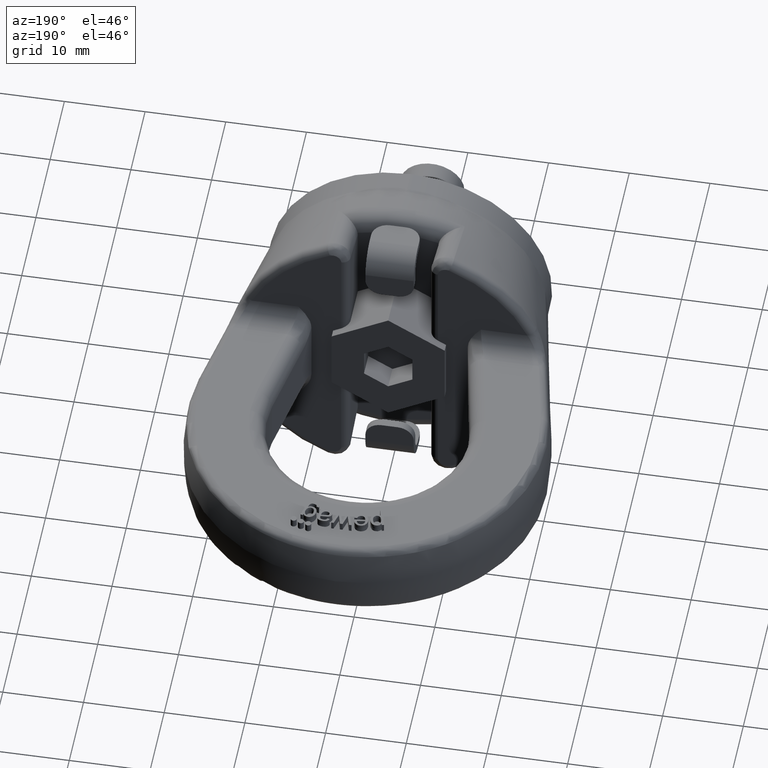
[diagram: clean part render]
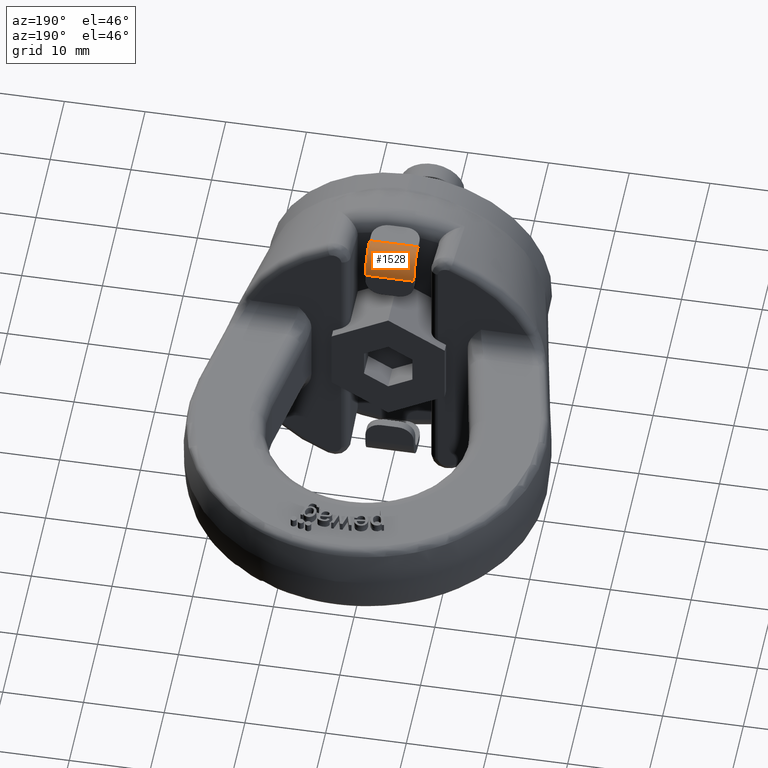
[diagram: same view with one face highlighted and labeled with its STEP entity id]
A machine part, auxiliary view. The second image highlights one B-rep face of the part: STEP entity #1528.
In plain terms, the highlighted cylindrical surface (edge-blend (fillet) strip) has radius 3 mm, axis along (-1, 0, 0).
Its self-contained STEP definition (entity closure, byte-faithful):
#1078=CYLINDRICAL_SURFACE('',#5348,3.);
#1289=FACE_OUTER_BOUND('',#2066,.T.);
#1528=ADVANCED_FACE('',(#1289),#1078,.T.);
#1733=CIRCLE('',#5331,3.);
#1734=CIRCLE('',#5334,3.);
#2066=EDGE_LOOP('',(#3780,#3781,#3782,#3783));
#2340=LINE('',#9682,#2676);
#2341=LINE('',#9685,#2677);
#2676=VECTOR('',#6152,1.);
#2677=VECTOR('',#6157,1.);
#3780=ORIENTED_EDGE('',*,*,#4797,.T.);
#3781=ORIENTED_EDGE('',*,*,#4815,.F.);
#3782=ORIENTED_EDGE('',*,*,#4789,.F.);
#3783=ORIENTED_EDGE('',*,*,#4813,.T.);
#4218=VERTEX_POINT('',#9621);
#4225=VERTEX_POINT('',#9634);
#4233=VERTEX_POINT('',#9652);
#4234=VERTEX_POINT('',#9654);
#4789=EDGE_CURVE('',#4225,#4218,#1733,.T.);
#4797=EDGE_CURVE('',#4234,#4233,#1734,.T.);
#4813=EDGE_CURVE('',#4225,#4234,#2340,.T.);
#4815=EDGE_CURVE('',#4218,#4233,#2341,.T.);
#5331=AXIS2_PLACEMENT_3D('',#9635,#6106,#6107);
#5334=AXIS2_PLACEMENT_3D('',#9653,#6119,#6120);
#5348=AXIS2_PLACEMENT_3D('',#9686,#6158,#6159);
#6106=DIRECTION('',(1.,0.,0.));
#6107=DIRECTION('',(0.,0.,1.));
#6119=DIRECTION('',(1.,0.,0.));
#6120=DIRECTION('',(0.,0.,1.));
#6152=DIRECTION('',(-1.,0.,0.));
#6157=DIRECTION('',(-1.,0.,0.));
#6158=DIRECTION('',(-1.,0.,0.));
#6159=DIRECTION('',(0.,0.,1.));
#9621=CARTESIAN_POINT('',(3.,12.,17.5));
#9634=CARTESIAN_POINT('',(3.,15.,14.5));
#9635=CARTESIAN_POINT('',(3.,12.,14.5));
#9652=CARTESIAN_POINT('',(-3.,12.,17.5));
#9653=CARTESIAN_POINT('',(-3.,12.,14.5));
#9654=CARTESIAN_POINT('',(-3.,15.,14.5));
#9682=CARTESIAN_POINT('',(3.,15.,14.5));
#9685=CARTESIAN_POINT('',(3.,12.,17.5));
#9686=CARTESIAN_POINT('',(3.,12.,14.5));